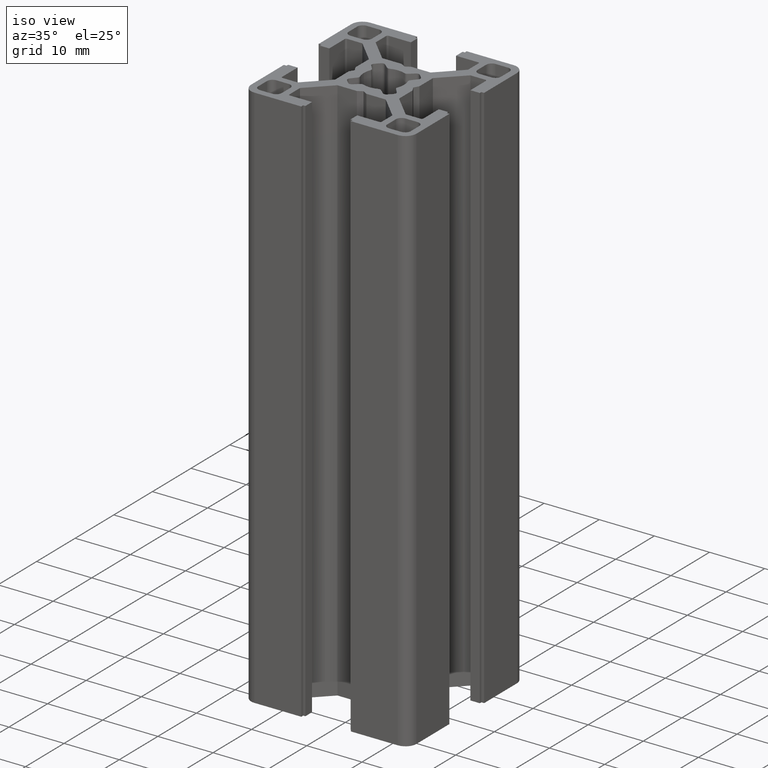
[diagram: clean part render]
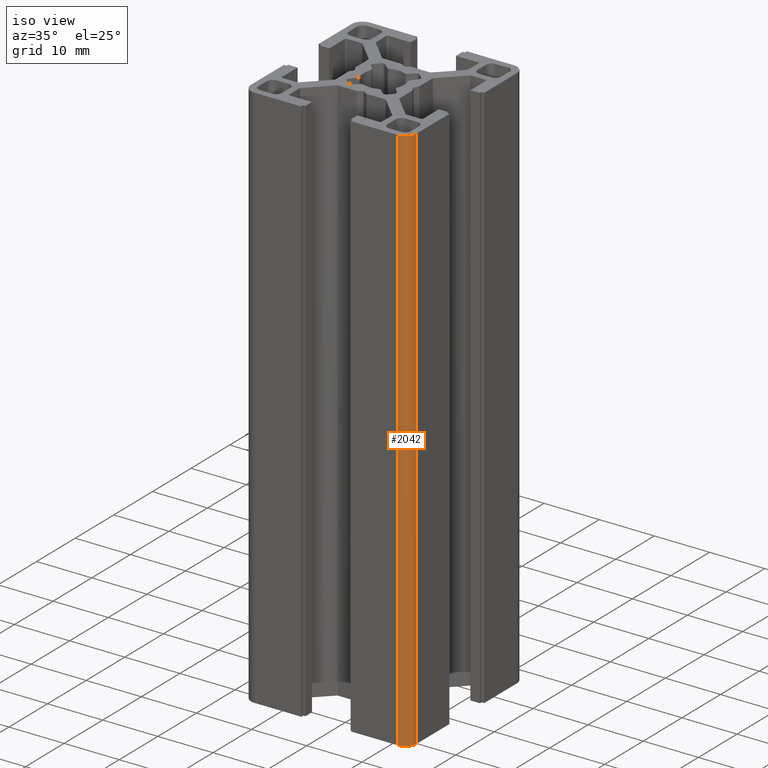
[diagram: same view with one face highlighted and labeled with its STEP entity id]
A machine part, iso view. The second image highlights one B-rep face of the part: STEP entity #2042.
In plain terms, the highlighted cylindrical surface (edge-blend (fillet) strip) has radius 2 mm, axis along (-0, -0, -1).
Its self-contained STEP definition (entity closure, byte-faithful):
#436 = DIRECTION ( 'NONE',  ( 1.000000000000000000, 0.0000000000000000000, 0.0000000000000000000 ) ) ;
#437 = DIRECTION ( 'NONE',  ( 0.0000000000000000000, 0.0000000000000000000, 1.000000000000000000 ) ) ;
#438 = CARTESIAN_POINT ( 'NONE',  ( 13.00000000000001100, -12.99999999999998800, 0.0000000000000000000 ) ) ;
#448 = CIRCLE ( 'NONE', #459, 2.000000000000001800 ) ;
#459 = AXIS2_PLACEMENT_3D ( 'NONE', #438, #437, #436 ) ;
#655 = CARTESIAN_POINT ( 'NONE',  ( 15.00000000000001200, -12.99999999999998900, 0.0000000000000000000 ) ) ;
#673 = CARTESIAN_POINT ( 'NONE',  ( 13.00000000000001100, -14.99999999999998900, 0.0000000000000000000 ) ) ;
#1210 = VERTEX_POINT ( 'NONE', #3393 ) ;
#1225 = VERTEX_POINT ( 'NONE', #3383 ) ;
#1232 = EDGE_CURVE ( 'NONE', #1210, #1225, #3412, .T. ) ;
#2038 = ORIENTED_EDGE ( 'NONE', *, *, #5258, .T. ) ;
#2040 = EDGE_LOOP ( 'NONE', ( #2038, #2052, #2046, #2045 ) ) ;
#2042 = ADVANCED_FACE ( 'NONE', ( #4715 ), #4738, .T. ) ;
#2043 = EDGE_CURVE ( 'NONE', #1225, #5248, #4764, .T. ) ;
#2045 = ORIENTED_EDGE ( 'NONE', *, *, #2055, .T. ) ;
#2046 = ORIENTED_EDGE ( 'NONE', *, *, #1232, .F. ) ;
#2052 = ORIENTED_EDGE ( 'NONE', *, *, #2043, .F. ) ;
#2055 = EDGE_CURVE ( 'NONE', #1210, #5234, #4768, .T. ) ;
#3378 = AXIS2_PLACEMENT_3D ( 'NONE', #3411, #3410, #3409 ) ;
#3383 = CARTESIAN_POINT ( 'NONE',  ( 15.00000000000001200, -12.99999999999998900, 100.0000000000000000 ) ) ;
#3393 = CARTESIAN_POINT ( 'NONE',  ( 13.00000000000001100, -14.99999999999998900, 100.0000000000000000 ) ) ;
#3409 = DIRECTION ( 'NONE',  ( 1.000000000000000000, 0.0000000000000000000, 0.0000000000000000000 ) ) ;
#3410 = DIRECTION ( 'NONE',  ( 0.0000000000000000000, 0.0000000000000000000, 1.000000000000000000 ) ) ;
#3411 = CARTESIAN_POINT ( 'NONE',  ( 13.00000000000001100, -12.99999999999998800, 100.0000000000000000 ) ) ;
#3412 = CIRCLE ( 'NONE', #3378, 2.000000000000001800 ) ;
#4715 = FACE_OUTER_BOUND ( 'NONE', #2040, .T. ) ;
#4719 = CARTESIAN_POINT ( 'NONE',  ( 13.00000000000001100, -12.99999999999998800, 100.0000000000000000 ) ) ;
#4721 = AXIS2_PLACEMENT_3D ( 'NONE', #4719, #4729, #4766 ) ;
#4729 = DIRECTION ( 'NONE',  ( -0.0000000000000000000, -0.0000000000000000000, -1.000000000000000000 ) ) ;
#4738 = CYLINDRICAL_SURFACE ( 'NONE', #4721, 2.000000000000001800 ) ;
#4753 = DIRECTION ( 'NONE',  ( -0.0000000000000000000, -0.0000000000000000000, -1.000000000000000000 ) ) ;
#4754 = VECTOR ( 'NONE', #4753, 1000.000000000000000 ) ;
#4759 = CARTESIAN_POINT ( 'NONE',  ( 13.00000000000001100, -14.99999999999998900, 100.0000000000000000 ) ) ;
#4761 = DIRECTION ( 'NONE',  ( -0.0000000000000000000, -0.0000000000000000000, -1.000000000000000000 ) ) ;
#4762 = VECTOR ( 'NONE', #4761, 1000.000000000000000 ) ;
#4763 = CARTESIAN_POINT ( 'NONE',  ( 15.00000000000001200, -12.99999999999998900, 100.0000000000000000 ) ) ;
#4764 = LINE ( 'NONE', #4763, #4762 ) ;
#4766 = DIRECTION ( 'NONE',  ( -1.000000000000000000, 0.0000000000000000000, 0.0000000000000000000 ) ) ;
#4768 = LINE ( 'NONE', #4759, #4754 ) ;
#5234 = VERTEX_POINT ( 'NONE', #673 ) ;
#5248 = VERTEX_POINT ( 'NONE', #655 ) ;
#5258 = EDGE_CURVE ( 'NONE', #5234, #5248, #448, .T. ) ;